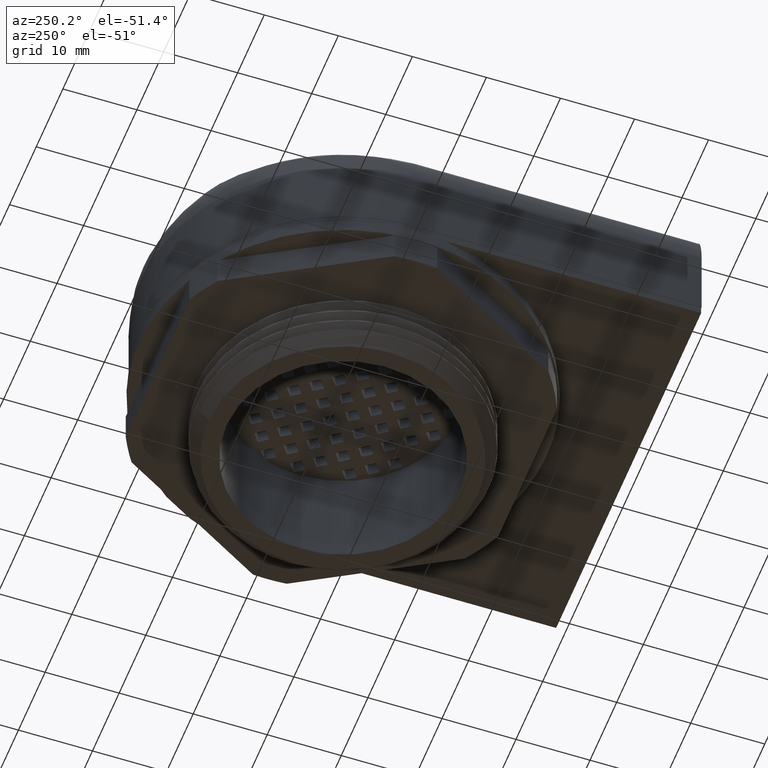
[diagram: clean part render]
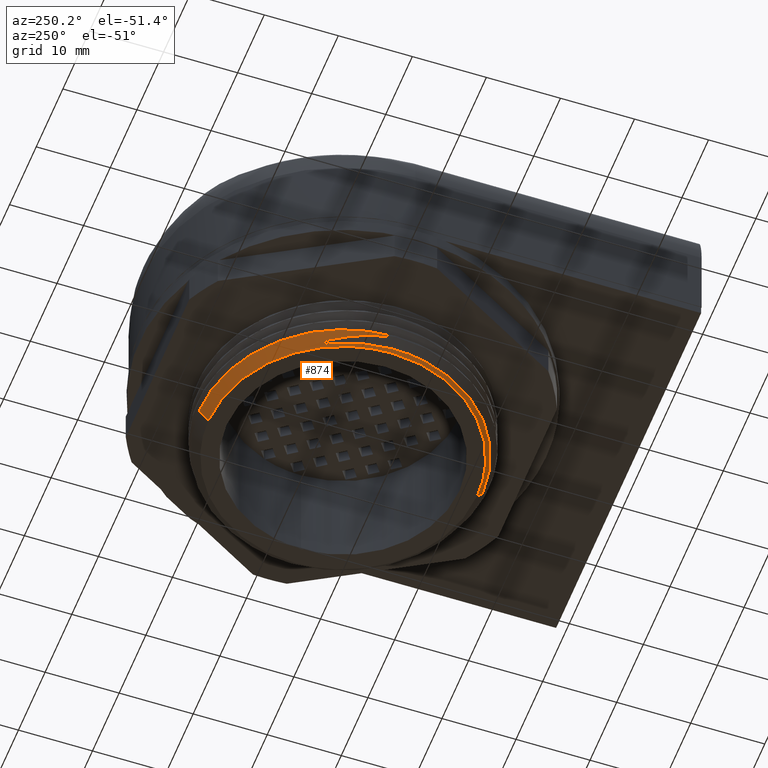
[diagram: same view with one face highlighted and labeled with its STEP entity id]
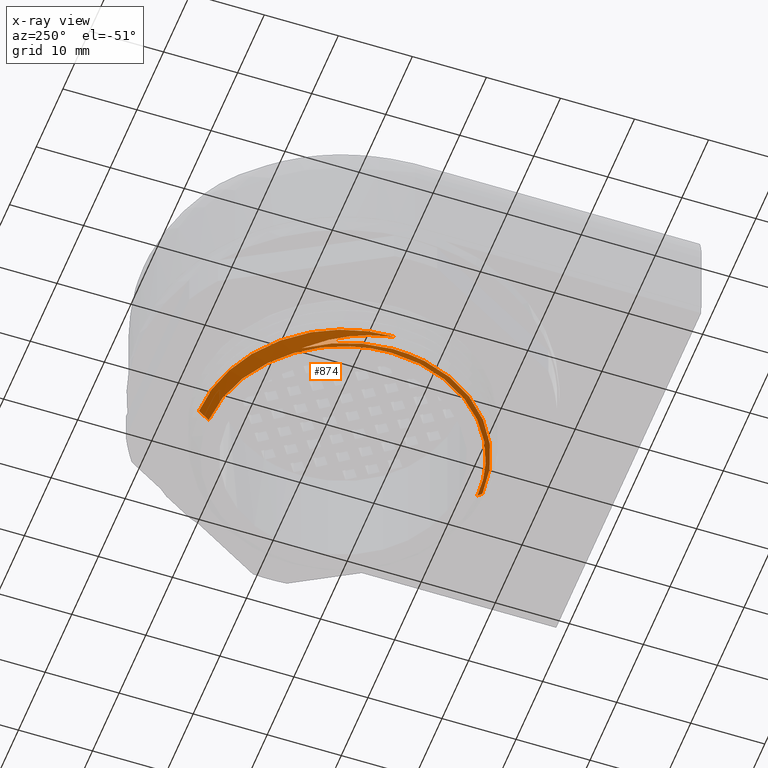
[diagram: x-ray of the same camera — body ghosted, the highlighted face saturated]
A machine part, auxiliary view. The second image highlights one B-rep face of the part: STEP entity #874.
The next image is the same camera in x-ray: the body ghosted, the highlighted face saturated — about 0% of this face is hidden behind the body in this view.
In plain terms, the highlighted conical surface has half-angle 45 deg.
Its self-contained STEP definition (entity closure, byte-faithful):
#602 = VERTEX_POINT ( 'NONE', #2873 ) ;
#617 = VERTEX_POINT ( 'NONE', #2889 ) ;
#638 = VERTEX_POINT ( 'NONE', #2951 ) ;
#640 = VERTEX_POINT ( 'NONE', #2927 ) ;
#672 = VERTEX_POINT ( 'NONE', #2938 ) ;
#712 = VERTEX_POINT ( 'NONE', #3002 ) ;
#727 = VERTEX_POINT ( 'NONE', #2978 ) ;
#728 = VERTEX_POINT ( 'NONE', #3017 ) ;
#758 = VERTEX_POINT ( 'NONE', #3049 ) ;
#874 = ADVANCED_FACE ( 'NONE', ( #3195 ), #5201, .T. ) ;
#1363 = EDGE_CURVE ( 'NONE', #758, #602, #12979, .T. ) ;
#1365 = EDGE_CURVE ( 'NONE', #617, #728, #13005, .T. ) ;
#1376 = EDGE_CURVE ( 'NONE', #727, #617, #16028, .T. ) ;
#1402 = EDGE_CURVE ( 'NONE', #602, #638, #13050, .T. ) ;
#1403 = EDGE_CURVE ( 'NONE', #638, #727, #13000, .T. ) ;
#1414 = EDGE_CURVE ( 'NONE', #712, #640, #12964, .T. ) ;
#1593 = EDGE_CURVE ( 'NONE', #640, #672, #13220, .T. ) ;
#1651 = EDGE_CURVE ( 'NONE', #712, #728, #9249, .T. ) ;
#1652 = EDGE_CURVE ( 'NONE', #672, #758, #9231, .T. ) ;
#2873 = CARTESIAN_POINT ( 'NONE',  ( -23.08927807702992400, 5.810299003322278100, 0.3703911066971359900 ) ) ;
#2889 = CARTESIAN_POINT ( 'NONE',  ( -21.29089367890791700, 16.13003696697078800, 1.500000000000000700 ) ) ;
#2927 = CARTESIAN_POINT ( 'NONE',  ( -22.71888697033279000, 5.810299003322280800, -3.730253670789395200E-033 ) ) ;
#2938 = CARTESIAN_POINT ( 'NONE',  ( -4.568886970332792800, -12.33970099667772400, 5.007193239341451600E-017 ) ) ;
#2951 = CARTESIAN_POINT ( 'NONE',  ( -19.39046838567451300, 16.70583982651400500, 0.2454365395725465500 ) ) ;
#2978 = CARTESIAN_POINT ( 'NONE',  ( -24.21888697033278200, 5.810299003322277200, 1.499999999999998400 ) ) ;
#3002 = CARTESIAN_POINT ( 'NONE',  ( -4.568886970332792800, 23.96029900332227700, -5.007193239341451600E-017 ) ) ;
#3017 = CARTESIAN_POINT ( 'NONE',  ( -4.568888629319312500, 25.25945443952218700, 1.299268512263473700 ) ) ;
#3049 = CARTESIAN_POINT ( 'NONE',  ( -4.568886970332790100, -13.01967998528714800, 0.6799789886094246300 ) ) ;
#3193 = DIRECTION ( 'NONE',  ( 0.0000000000000000000, 5.517568307814271700E-018, 1.000000000000000000 ) ) ;
#3195 = FACE_OUTER_BOUND ( 'NONE', #13864, .T. ) ;
#3200 = DIRECTION ( 'NONE',  ( 0.0000000000000000000, -1.000000000000000000, 1.103513661562854200E-017 ) ) ;
#3203 = CARTESIAN_POINT ( 'NONE',  ( -4.568886970332791000, 5.810299003322278100, 1.500000000000001600 ) ) ;
#5201 = CONICAL_SURFACE ( 'NONE', #5210, 19.65000000000000200, 0.7853981633974482800 ) ;
#5210 = AXIS2_PLACEMENT_3D ( 'NONE', #3203, #3193, #3200 ) ;
#6977 = CARTESIAN_POINT ( 'NONE',  ( -15.55066860242840000, 22.08891217825832600, 1.416373381309018000 ) ) ;
#6978 = CARTESIAN_POINT ( 'NONE',  ( -22.99569140489835900, 3.383466458925369100, 0.3961900968564922000 ) ) ;
#6979 = CARTESIAN_POINT ( 'NONE',  ( -23.08927807702992400, 5.810299003322278100, 0.3703911066971359900 ) ) ;
#6980 = CARTESIAN_POINT ( 'NONE',  ( -12.63818459842981500, 23.67566532289431800, 1.382922733832624900 ) ) ;
#6983 = CARTESIAN_POINT ( 'NONE',  ( -21.29710946472534500, -2.436269641907092200, 0.4606875722548857700 ) ) ;
#6985 = CARTESIAN_POINT ( 'NONE',  ( -19.33261879731202600, 18.83355404345072200, 1.466549352523607300 ) ) ;
#6986 = CARTESIAN_POINT ( 'NONE',  ( -11.08244867899343300, 24.28166022768945700, 1.366197410094428700 ) ) ;
#6987 = CARTESIAN_POINT ( 'NONE',  ( -5.801306213204990000, -13.00678049020746500, 0.6670794935297452700 ) ) ;
#6990 = CARTESIAN_POINT ( 'NONE',  ( -4.568886970332790100, -13.01967998528714800, 0.6799789886094246300 ) ) ;
#6992 = CARTESIAN_POINT ( 'NONE',  ( -9.438621878173147900, -12.36732173916804800, 0.6283810082907093100 ) ) ;
#6994 = CARTESIAN_POINT ( 'NONE',  ( -7.872557967604991300, 25.08201116446393200, 1.332746762618035600 ) ) ;
#6995 = CARTESIAN_POINT ( 'NONE',  ( -12.87417989112959100, -11.03322222830925100, 0.5896825230516731200 ) ) ;
#6997 = CARTESIAN_POINT ( 'NONE',  ( -13.95452889431235000, -10.44092600514067500, 0.5767830279719942100 ) ) ;
#6998 = CARTESIAN_POINT ( 'NONE',  ( -16.91907014231209800, -8.268460439806377200, 0.5380845427329584700 ) ) ;
#6999 = CARTESIAN_POINT ( 'NONE',  ( -19.39762508832932400, -5.564934131899325300, 0.4993860574939220600 ) ) ;
#7000 = CARTESIAN_POINT ( 'NONE',  ( -20.73149336580058100, -3.522222225750446500, 0.4735870673345645200 ) ) ;
#7001 = CARTESIAN_POINT ( 'NONE',  ( -22.54704631467880900, 0.9957340180851733700, 0.4219890870158496400 ) ) ;
#7002 = CARTESIAN_POINT ( 'NONE',  ( -7.031145991488277700, -12.87250288945515700, 0.6541799984500665800 ) ) ;
#7003 = CARTESIAN_POINT ( 'NONE',  ( -23.10217757210960300, 4.598142239938748200, 0.3832906017768134000 ) ) ;
#7004 = CARTESIAN_POINT ( 'NONE',  ( -20.40131230394257900, 17.53965930038472000, 1.483274676261803600 ) ) ;
#7005 = CARTESIAN_POINT ( 'NONE',  ( -6.218629150368623300, 25.27632044419859600, 1.316021438879839200 ) ) ;
#7009 = CARTESIAN_POINT ( 'NONE',  ( -10.61619895434872000, -11.99643318162769900, 0.6154815132110305100 ) ) ;
#7010 = CARTESIAN_POINT ( 'NONE',  ( -15.97699831649459100, -9.058526959752690300, 0.5509840378126368300 ) ) ;
#7011 = CARTESIAN_POINT ( 'NONE',  ( -22.20489598490946600, -0.1772631029922595300, 0.4348885820955284400 ) ) ;
#7016 = CARTESIAN_POINT ( 'NONE',  ( -4.568888629319312500, 25.25945443952218700, 1.299268512263473700 ) ) ;
#7022 = CARTESIAN_POINT ( 'NONE',  ( -18.62940377257199400, -6.521641527767573400, 0.5122855525736006400 ) ) ;
#7027 = CARTESIAN_POINT ( 'NONE',  ( -21.29089367890791700, 16.13003696697078800, 1.500000000000000700 ) ) ;
#7029 = CARTESIAN_POINT ( 'NONE',  ( -16.90720924036810000, 21.10825635885079200, 1.433098705047215000 ) ) ;
#7040 = DIRECTION ( 'NONE',  ( -0.0000000000000000000, -0.0000000000000000000, -1.000000000000000000 ) ) ;
#7049 = CARTESIAN_POINT ( 'NONE',  ( -4.568886970332791000, 5.810299003322278100, 1.499999999999997800 ) ) ;
#7068 = DIRECTION ( 'NONE',  ( 1.000000000000000000, 0.0000000000000000000, 8.828109292502833600E-017 ) ) ;
#7131 = CARTESIAN_POINT ( 'NONE',  ( -23.08927807702992400, 5.810299003322278100, 0.3703911066971359900 ) ) ;
#7132 = CARTESIAN_POINT ( 'NONE',  ( -19.39046838567451300, 16.70583982651400500, 0.2454365395725465500 ) ) ;
#7151 = CARTESIAN_POINT ( 'NONE',  ( -23.06845231584249200, 7.766994715658810800, 0.3495653455097043100 ) ) ;
#7182 = CARTESIAN_POINT ( 'NONE',  ( -24.07937900647198100, 7.172965423717194300, 1.360492036139188300 ) ) ;
#7184 = CARTESIAN_POINT ( 'NONE',  ( -23.81927221302558100, 8.334710793826030100, 1.239185476472920000 ) ) ;
#7189 = CARTESIAN_POINT ( 'NONE',  ( -19.39046838567451300, 16.70583982651400500, 0.2454365395725465500 ) ) ;
#7193 = CARTESIAN_POINT ( 'NONE',  ( -22.60722752412340600, 11.82245452637623400, 0.8638320962820040800 ) ) ;
#7196 = CARTESIAN_POINT ( 'NONE',  ( -24.21888697033278200, 5.810299003322277200, 1.499999999999998400 ) ) ;
#7198 = CARTESIAN_POINT ( 'NONE',  ( -20.28196602372600000, 15.73502195154192100, 0.3887231111987282100 ) ) ;
#7205 = CARTESIAN_POINT ( 'NONE',  ( -22.27985667333635400, 12.51441832369877200, 0.7861809409468965000 ) ) ;
#7206 = CARTESIAN_POINT ( 'NONE',  ( -21.47982545780564900, 13.40959146517993300, 0.2870880619474089900 ) ) ;
#7210 = CARTESIAN_POINT ( 'NONE',  ( -20.55837166095269500, 15.15226164382866600, 0.2662623007599774800 ) ) ;
#7216 = CARTESIAN_POINT ( 'NONE',  ( -22.64326704041930700, 11.74175820013012700, 0.8727098526741301500 ) ) ;
#7220 = CARTESIAN_POINT ( 'NONE',  ( -21.76119778133460900, 13.48868959220710200, 0.6723439062108426100 ) ) ;
#7222 = CARTESIAN_POINT ( 'NONE',  ( -22.55193713746311700, 11.94506859267333700, 0.8502969197971739200 ) ) ;
#7226 = CARTESIAN_POINT ( 'NONE',  ( -22.73498405864989600, 9.716653243143531100, 0.3287395843222725200 ) ) ;
#7227 = CARTESIAN_POINT ( 'NONE',  ( -22.66137470173231700, 11.70079574292588900, 0.8772001704769496500 ) ) ;
#7228 = CARTESIAN_POINT ( 'NONE',  ( -22.49285031512076200, 12.07231962903502200, 0.8361061176224231500 ) ) ;
#7229 = CARTESIAN_POINT ( 'NONE',  ( -21.98766614163429300, 13.08129668063255500, 0.7206760563822646200 ) ) ;
#7230 = CARTESIAN_POINT ( 'NONE',  ( -23.25244499824485400, 10.27355667659332300, 1.032975165529460100 ) ) ;
#7232 = CARTESIAN_POINT ( 'NONE',  ( -22.36932989132402100, 12.33279561239929100, 0.8068503456863572700 ) ) ;
#7234 = CARTESIAN_POINT ( 'NONE',  ( -20.96641916278533600, 14.77982436006022700, 0.5133607743115752300 ) ) ;
#7235 = CARTESIAN_POINT ( 'NONE',  ( -22.94548129360624200, 11.05213794011628000, 0.9480714142522686000 ) ) ;
#7314 = CARTESIAN_POINT ( 'NONE',  ( -5.756801692471429800, 23.96029900332228000, -1.001438647868290400E-016 ) ) ;
#7352 = CARTESIAN_POINT ( 'NONE',  ( -4.568886970332792800, 23.96029900332227700, -5.007193239341451600E-017 ) ) ;
#7355 = CARTESIAN_POINT ( 'NONE',  ( -22.60189047532114500, 8.186099074067142200, -1.310863917604476600E-017 ) ) ;
#7356 = CARTESIAN_POINT ( 'NONE',  ( -22.71888697033279000, 6.998213725460921400, -6.554400623258177600E-018 ) ) ;
#7360 = CARTESIAN_POINT ( 'NONE',  ( -9.274865588773384000, 23.37980117697118800, -9.694092837739917400E-017 ) ) ;
#7364 = CARTESIAN_POINT ( 'NONE',  ( -22.13838914398169800, 10.51627762176288700, -2.596555848235948300E-017 ) ) ;
#7372 = CARTESIAN_POINT ( 'NONE',  ( -20.32003049260996300, 14.90618373916296100, -5.018716535000612100E-017 ) ) ;
#7373 = CARTESIAN_POINT ( 'NONE',  ( -21.79189576863768400, 11.65851320259592900, -3.226792132322172100E-017 ) ) ;
#7380 = CARTESIAN_POINT ( 'NONE',  ( -20.88270520218761200, 13.85349339890137400, -4.437887449063658000E-017 ) ) ;
#7387 = CARTESIAN_POINT ( 'NONE',  ( -10.41710116960643800, 23.03330780162717100, -9.502912751073346100E-017 ) ) ;
#7388 = CARTESIAN_POINT ( 'NONE',  ( -15.64020169310367500, 20.24150240762748600, -7.962515054721585900E-017 ) ) ;
#7394 = CARTESIAN_POINT ( 'NONE',  ( -16.56289249337306300, 19.48426963735368400, -7.544706701231469700E-017 ) ) ;
#7395 = CARTESIAN_POINT ( 'NONE',  ( -22.71888697033279000, 5.810299003322280800, -3.730253670789395200E-033 ) ) ;
#7398 = CARTESIAN_POINT ( 'NONE',  ( -6.944687041077639100, 23.84330250831063600, -9.949832863382745700E-017 ) ) ;
#7400 = CARTESIAN_POINT ( 'NONE',  ( -19.00009037463799500, 16.88161372609316000, -6.108673524019815600E-017 ) ) ;
#7403 = CARTESIAN_POINT ( 'NONE',  ( -12.61208136591188000, 22.12411723517710300, -9.001260645552484700E-017 ) ) ;
#7410 = CARTESIAN_POINT ( 'NONE',  ( -13.66477170617347000, 21.56144252559945300, -8.690801031035058000E-017 ) ) ;
#7411 = CARTESIAN_POINT ( 'NONE',  ( -18.24285760436420400, 17.80430452636255700, -6.617774475767636000E-017 ) ) ;
#8580 = CARTESIAN_POINT ( 'NONE',  ( -22.71888697033279000, 5.810299003322280800, -3.730253670789395200E-033 ) ) ;
#8587 = CARTESIAN_POINT ( 'NONE',  ( -22.71888697033279300, 4.622384281183641100, 6.554400623258141400E-018 ) ) ;
#8613 = CARTESIAN_POINT ( 'NONE',  ( -22.60189047532114500, 3.434498932577421100, 1.310863917604472600E-017 ) ) ;
#8616 = CARTESIAN_POINT ( 'NONE',  ( -22.13838914398169400, 1.104320384881676900, 2.596555848235943300E-017 ) ) ;
#8620 = CARTESIAN_POINT ( 'NONE',  ( -21.79189576863768000, -0.03791519595138424100, 3.226792132322176400E-017 ) ) ;
#8638 = CARTESIAN_POINT ( 'NONE',  ( -16.56289249337306300, -7.863671630709125000, 7.544706701231468500E-017 ) ) ;
#8639 = CARTESIAN_POINT ( 'NONE',  ( -13.66477170617347000, -9.940844518954897100, 8.690801031035060500E-017 ) ) ;
#8643 = CARTESIAN_POINT ( 'NONE',  ( -20.88270520218760500, -2.232895392256826600, 4.437887449063662900E-017 ) ) ;
#8646 = CARTESIAN_POINT ( 'NONE',  ( -10.41710116960646500, -11.41270979498260900, 9.502912751073342400E-017 ) ) ;
#8647 = CARTESIAN_POINT ( 'NONE',  ( -4.568886970332792800, -12.33970099667772400, 5.007193239341451600E-017 ) ) ;
#8649 = CARTESIAN_POINT ( 'NONE',  ( -9.274865588773399900, -11.75920317032662700, 9.694092837739914900E-017 ) ) ;
#8657 = CARTESIAN_POINT ( 'NONE',  ( -20.32003049260997000, -3.285585732518393300, 5.018716535000606600E-017 ) ) ;
#8660 = CARTESIAN_POINT ( 'NONE',  ( -18.24285760436419700, -6.183706519717988600, 6.617774475767631100E-017 ) ) ;
#8664 = CARTESIAN_POINT ( 'NONE',  ( -19.00009037463800600, -5.261015719448593600, 6.108673524019810600E-017 ) ) ;
#8670 = CARTESIAN_POINT ( 'NONE',  ( -12.61208136591190200, -10.50351922853253100, 9.001260645552473600E-017 ) ) ;
#8678 = CARTESIAN_POINT ( 'NONE',  ( -6.944687041077655100, -12.22270450166607600, 9.949832863382743200E-017 ) ) ;
#8679 = CARTESIAN_POINT ( 'NONE',  ( -5.756801692471435100, -12.33970099667772200, 1.001438647868290200E-016 ) ) ;
#8680 = CARTESIAN_POINT ( 'NONE',  ( -15.64020169310367500, -8.620904400982938800, 7.962515054721590800E-017 ) ) ;
#9213 = CARTESIAN_POINT ( 'NONE',  ( -4.568886970332788300, 25.46029900332228000, 1.500000000000001300 ) ) ;
#9228 = DIRECTION ( 'NONE',  ( 8.659560562354931600E-017, 0.7071067811865474600, 0.7071067811865475700 ) ) ;
#9231 = LINE ( 'NONE', #9248, #15490 ) ;
#9245 = DIRECTION ( 'NONE',  ( 0.0000000000000000000, -0.7071067811865474600, 0.7071067811865475700 ) ) ;
#9248 = CARTESIAN_POINT ( 'NONE',  ( -4.568886970332791000, -13.83970099667772200, 1.500000000000001800 ) ) ;
#9249 = LINE ( 'NONE', #9213, #15485 ) ;
#12964 = B_SPLINE_CURVE_WITH_KNOTS ( 'NONE', 3,
 ( #7352, #7314, #7398, #7360, #7387, #7403, #7410, #7388, #7394, #7411, #7400, #7372, #7380, #7373, #7364, #7355, #7356, #7395 ),
 .UNSPECIFIED., .F., .F.,
 ( 4, 2, 2, 2, 2, 2, 2, 2, 4 ),
 ( 0.5000000000000000000, 0.5625000000000000000, 0.6250000000000000000, 0.6875000000000000000, 0.7500000000000000000, 0.8125000000000000000, 0.8750000000000000000, 0.9375000000000000000, 1.000000000000000000 ),
 .UNSPECIFIED. ) ;
#12979 = B_SPLINE_CURVE_WITH_KNOTS ( 'NONE', 3,
 ( #6990, #6987, #7002, #6992, #7009, #6995, #6997, #7010, #6998, #7022, #6999, #7000, #6983, #7011, #7001, #6978, #7003, #6979 ),
 .UNSPECIFIED., .F., .F.,
 ( 4, 2, 2, 2, 2, 2, 2, 2, 4 ),
 ( 0.5000000000000000000, 0.5624999999999998900, 0.6249999999999998900, 0.6874999999999998900, 0.7499999999999998900, 0.8124999999999998900, 0.8750000000000000000, 0.9375000000000000000, 1.000000000000000000 ),
 .UNSPECIFIED. ) ;
#13000 = B_SPLINE_CURVE_WITH_KNOTS ( 'NONE', 3,
 ( #7132, #7198, #7234, #7220, #7229, #7205, #7232, #7228, #7222, #7193, #7216, #7227, #7235, #7230, #7184, #7182, #7196 ),
 .UNSPECIFIED., .F., .F.,
 ( 4, 2, 2, 2, 1, 2, 2, 2, 4 ),
 ( 0.0000000000000000000, 0.2499999999999970000, 0.3749999999999957300, 0.4374999999999950600, 0.4687499999999947800, 0.4843749999999946200, 0.4999999999999944500, 0.7499999999999972200, 1.000000000000000000 ),
 .UNSPECIFIED. ) ;
#13005 = B_SPLINE_CURVE_WITH_KNOTS ( 'NONE', 3,
 ( #7027, #7004, #6985, #7029, #6977, #6980, #6986, #6994, #7005, #7016 ),
 .UNSPECIFIED., .F., .F.,
 ( 4, 2, 2, 2, 4 ),
 ( 0.0000000000000000000, 0.09830077304322718000, 0.1966015460864543600, 0.2949023191296814600, 0.3932030921729085500 ),
 .UNSPECIFIED. ) ;
#13050 = B_SPLINE_CURVE_WITH_KNOTS ( 'NONE', 3,
 ( #7131, #7151, #7226, #7206, #7210, #7189 ),
 .UNSPECIFIED., .F., .F.,
 ( 4, 2, 4 ),
 ( 0.0000000000000000000, 0.5000000000000000000, 1.000000000000000000 ),
 .UNSPECIFIED. ) ;
#13220 = B_SPLINE_CURVE_WITH_KNOTS ( 'NONE', 3,
 ( #8580, #8587, #8613, #8616, #8620, #8643, #8657, #8664, #8660, #8638, #8680, #8639, #8670, #8646, #8649, #8678, #8679, #8647 ),
 .UNSPECIFIED., .F., .F.,
 ( 4, 2, 2, 2, 2, 2, 2, 2, 4 ),
 ( 0.0000000000000000000, 0.06249999999999997200, 0.1249999999999999400, 0.1874999999999999200, 0.2499999999999998900, 0.3124999999999998900, 0.3749999999999999400, 0.4374999999999999400, 0.5000000000000000000 ),
 .UNSPECIFIED. ) ;
#13864 = EDGE_LOOP ( 'NONE', ( #13972, #14050, #14021, #14010, #14056, #13997, #14049, #14061, #14062 ) ) ;
#13972 = ORIENTED_EDGE ( 'NONE', *, *, #1651, .F. ) ;
#13997 = ORIENTED_EDGE ( 'NONE', *, *, #1402, .T. ) ;
#14010 = ORIENTED_EDGE ( 'NONE', *, *, #1652, .T. ) ;
#14021 = ORIENTED_EDGE ( 'NONE', *, *, #1593, .T. ) ;
#14049 = ORIENTED_EDGE ( 'NONE', *, *, #1403, .T. ) ;
#14050 = ORIENTED_EDGE ( 'NONE', *, *, #1414, .T. ) ;
#14056 = ORIENTED_EDGE ( 'NONE', *, *, #1363, .T. ) ;
#14061 = ORIENTED_EDGE ( 'NONE', *, *, #1376, .T. ) ;
#14062 = ORIENTED_EDGE ( 'NONE', *, *, #1365, .T. ) ;
#15485 = VECTOR ( 'NONE', #9228, 1000.000000000000000 ) ;
#15490 = VECTOR ( 'NONE', #9245, 1000.000000000000000 ) ;
#15968 = AXIS2_PLACEMENT_3D ( 'NONE', #7049, #7040, #7068 ) ;
#16028 = CIRCLE ( 'NONE', #15968, 19.65000000000000200 ) ;